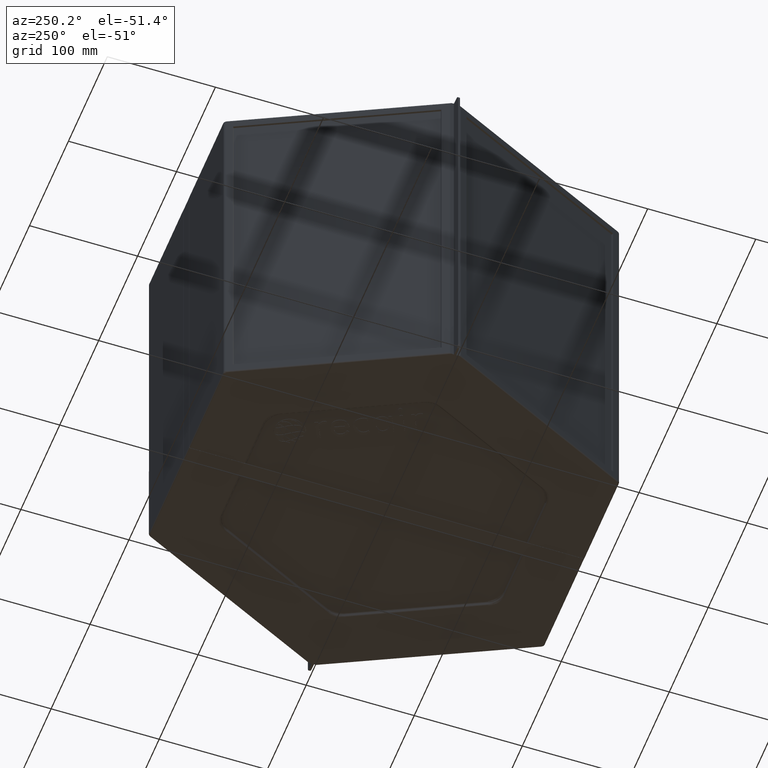
[diagram: clean part render]
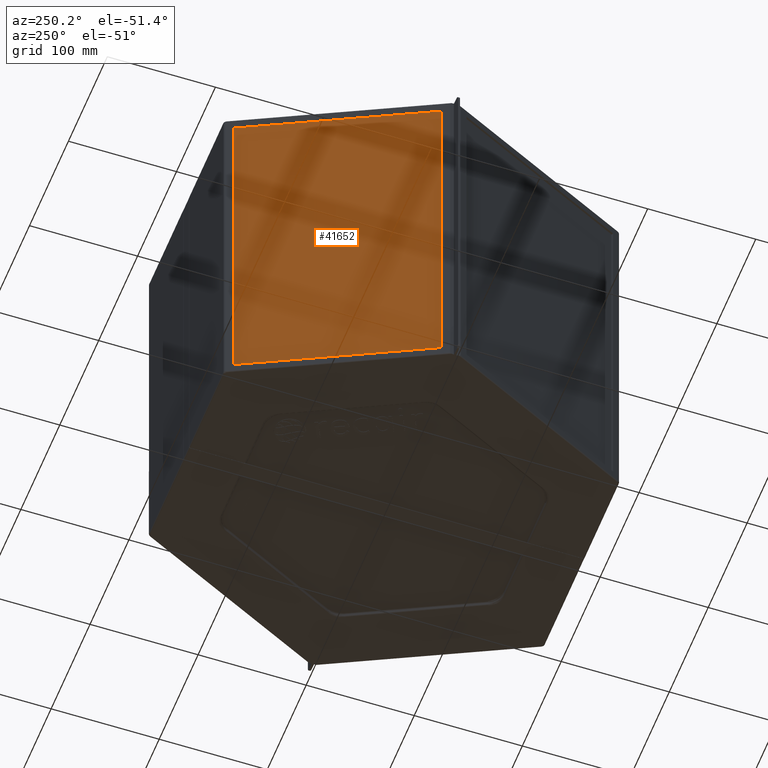
[diagram: same view with one face highlighted and labeled with its STEP entity id]
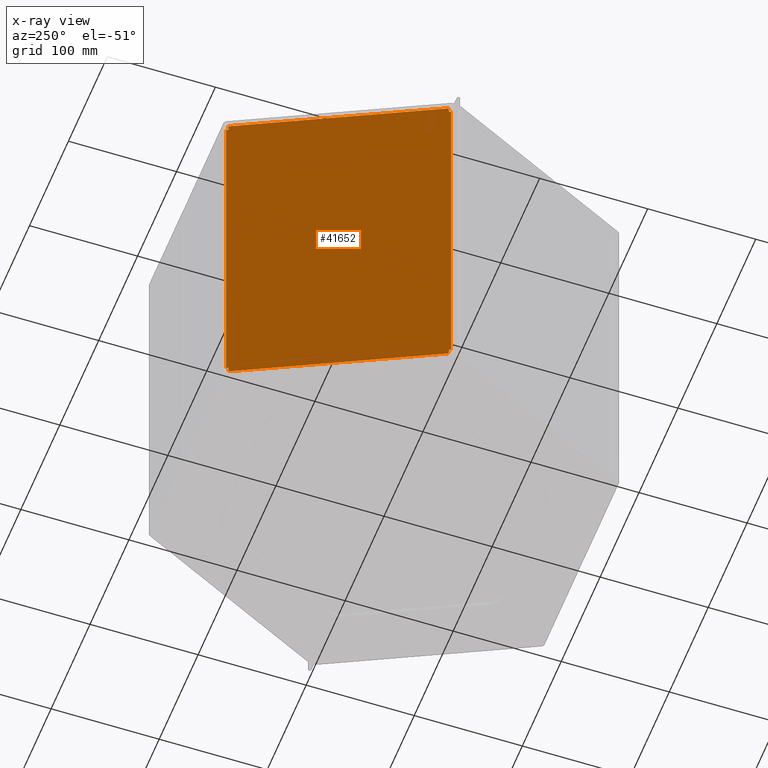
[diagram: x-ray of the same camera — body ghosted, the highlighted face saturated]
A machine part, auxiliary view. The second image highlights one B-rep face of the part: STEP entity #41652.
The next image is the same camera in x-ray: the body ghosted, the highlighted face saturated — about 0% of this face is hidden behind the body in this view.
In plain terms, the highlighted planar face has unit normal (-0.9007, 0.4344, 0).
Its self-contained STEP definition (entity closure, byte-faithful):
#1796=PLANE('',#44050);
#3133=FACE_OUTER_BOUND('',#5406,.T.);
#5406=EDGE_LOOP('',(#27264,#27265,#27266,#27267,#27268,#27269,#27270,#27271,
#27272,#27273,#27274,#27275,#27276,#27277,#27278,#27279,#27280,#27281,#27282,
#27283,#27284,#27285,#27286,#27287,#27288,#27289,#27290,#27291,#27292,#27293,
#27294,#27295));
#7824=LINE('',#57548,#11992);
#7830=LINE('',#57560,#11998);
#7831=LINE('',#57562,#11999);
#7832=LINE('',#57564,#12000);
#7833=LINE('',#57566,#12001);
#7834=LINE('',#57568,#12002);
#7835=LINE('',#57570,#12003);
#7836=LINE('',#57572,#12004);
#7837=LINE('',#57574,#12005);
#7838=LINE('',#57576,#12006);
#7839=LINE('',#57578,#12007);
#7840=LINE('',#57580,#12008);
#7841=LINE('',#57582,#12009);
#7842=LINE('',#57584,#12010);
#7843=LINE('',#57586,#12011);
#7844=LINE('',#57588,#12012);
#7845=LINE('',#57590,#12013);
#7846=LINE('',#57592,#12014);
#7847=LINE('',#57594,#12015);
#7848=LINE('',#57596,#12016);
#7849=LINE('',#57598,#12017);
#7850=LINE('',#57600,#12018);
#7851=LINE('',#57602,#12019);
#7852=LINE('',#57604,#12020);
#7853=LINE('',#57606,#12021);
#7854=LINE('',#57608,#12022);
#7855=LINE('',#57610,#12023);
#7856=LINE('',#57612,#12024);
#7857=LINE('',#57614,#12025);
#7858=LINE('',#57616,#12026);
#7859=LINE('',#57618,#12027);
#7860=LINE('',#57619,#12028);
#11992=VECTOR('',#47277,10.);
#11998=VECTOR('',#47285,10.);
#11999=VECTOR('',#47286,10.);
#12000=VECTOR('',#47287,10.);
#12001=VECTOR('',#47288,10.);
#12002=VECTOR('',#47289,10.);
#12003=VECTOR('',#47290,10.);
#12004=VECTOR('',#47291,10.);
#12005=VECTOR('',#47292,10.);
#12006=VECTOR('',#47293,10.);
#12007=VECTOR('',#47294,10.);
#12008=VECTOR('',#47295,10.);
#12009=VECTOR('',#47296,10.);
#12010=VECTOR('',#47297,10.);
#12011=VECTOR('',#47298,10.);
#12012=VECTOR('',#47299,10.);
#12013=VECTOR('',#47300,10.);
#12014=VECTOR('',#47301,10.);
#12015=VECTOR('',#47302,10.);
#12016=VECTOR('',#47303,10.);
#12017=VECTOR('',#47304,10.);
#12018=VECTOR('',#47305,10.);
#12019=VECTOR('',#47306,10.);
#12020=VECTOR('',#47307,10.);
#12021=VECTOR('',#47308,10.);
#12022=VECTOR('',#47309,10.);
#12023=VECTOR('',#47310,10.);
#12024=VECTOR('',#47311,10.);
#12025=VECTOR('',#47312,10.);
#12026=VECTOR('',#47313,10.);
#12027=VECTOR('',#47314,10.);
#12028=VECTOR('',#47315,10.);
#17094=VERTEX_POINT('',#57545);
#17095=VERTEX_POINT('',#57547);
#17100=VERTEX_POINT('',#57559);
#17101=VERTEX_POINT('',#57561);
#17102=VERTEX_POINT('',#57563);
#17103=VERTEX_POINT('',#57565);
#17104=VERTEX_POINT('',#57567);
#17105=VERTEX_POINT('',#57569);
#17106=VERTEX_POINT('',#57571);
#17107=VERTEX_POINT('',#57573);
#17108=VERTEX_POINT('',#57575);
#17109=VERTEX_POINT('',#57577);
#17110=VERTEX_POINT('',#57579);
#17111=VERTEX_POINT('',#57581);
#17112=VERTEX_POINT('',#57583);
#17113=VERTEX_POINT('',#57585);
#17114=VERTEX_POINT('',#57587);
#17115=VERTEX_POINT('',#57589);
#17116=VERTEX_POINT('',#57591);
#17117=VERTEX_POINT('',#57593);
#17118=VERTEX_POINT('',#57595);
#17119=VERTEX_POINT('',#57597);
#17120=VERTEX_POINT('',#57599);
#17121=VERTEX_POINT('',#57601);
#17122=VERTEX_POINT('',#57603);
#17123=VERTEX_POINT('',#57605);
#17124=VERTEX_POINT('',#57607);
#17125=VERTEX_POINT('',#57609);
#17126=VERTEX_POINT('',#57611);
#17127=VERTEX_POINT('',#57613);
#17128=VERTEX_POINT('',#57615);
#17129=VERTEX_POINT('',#57617);
#21108=EDGE_CURVE('',#17094,#17095,#7824,.T.);
#21114=EDGE_CURVE('',#17100,#17094,#7830,.T.);
#21115=EDGE_CURVE('',#17101,#17100,#7831,.T.);
#21116=EDGE_CURVE('',#17102,#17101,#7832,.T.);
#21117=EDGE_CURVE('',#17103,#17102,#7833,.T.);
#21118=EDGE_CURVE('',#17103,#17104,#7834,.T.);
#21119=EDGE_CURVE('',#17105,#17104,#7835,.T.);
#21120=EDGE_CURVE('',#17106,#17105,#7836,.T.);
#21121=EDGE_CURVE('',#17107,#17106,#7837,.T.);
#21122=EDGE_CURVE('',#17107,#17108,#7838,.T.);
#21123=EDGE_CURVE('',#17109,#17108,#7839,.T.);
#21124=EDGE_CURVE('',#17110,#17109,#7840,.T.);
#21125=EDGE_CURVE('',#17111,#17110,#7841,.T.);
#21126=EDGE_CURVE('',#17111,#17112,#7842,.T.);
#21127=EDGE_CURVE('',#17113,#17112,#7843,.T.);
#21128=EDGE_CURVE('',#17114,#17113,#7844,.T.);
#21129=EDGE_CURVE('',#17115,#17114,#7845,.T.);
#21130=EDGE_CURVE('',#17116,#17115,#7846,.T.);
#21131=EDGE_CURVE('',#17117,#17116,#7847,.T.);
#21132=EDGE_CURVE('',#17117,#17118,#7848,.T.);
#21133=EDGE_CURVE('',#17119,#17118,#7849,.T.);
#21134=EDGE_CURVE('',#17120,#17119,#7850,.T.);
#21135=EDGE_CURVE('',#17121,#17120,#7851,.T.);
#21136=EDGE_CURVE('',#17121,#17122,#7852,.T.);
#21137=EDGE_CURVE('',#17123,#17122,#7853,.T.);
#21138=EDGE_CURVE('',#17124,#17123,#7854,.T.);
#21139=EDGE_CURVE('',#17125,#17124,#7855,.T.);
#21140=EDGE_CURVE('',#17125,#17126,#7856,.T.);
#21141=EDGE_CURVE('',#17127,#17126,#7857,.T.);
#21142=EDGE_CURVE('',#17128,#17127,#7858,.T.);
#21143=EDGE_CURVE('',#17129,#17128,#7859,.T.);
#21144=EDGE_CURVE('',#17095,#17129,#7860,.T.);
#27264=ORIENTED_EDGE('',*,*,#21114,.F.);
#27265=ORIENTED_EDGE('',*,*,#21115,.F.);
#27266=ORIENTED_EDGE('',*,*,#21116,.F.);
#27267=ORIENTED_EDGE('',*,*,#21117,.F.);
#27268=ORIENTED_EDGE('',*,*,#21118,.T.);
#27269=ORIENTED_EDGE('',*,*,#21119,.F.);
#27270=ORIENTED_EDGE('',*,*,#21120,.F.);
#27271=ORIENTED_EDGE('',*,*,#21121,.F.);
#27272=ORIENTED_EDGE('',*,*,#21122,.T.);
#27273=ORIENTED_EDGE('',*,*,#21123,.F.);
#27274=ORIENTED_EDGE('',*,*,#21124,.F.);
#27275=ORIENTED_EDGE('',*,*,#21125,.F.);
#27276=ORIENTED_EDGE('',*,*,#21126,.T.);
#27277=ORIENTED_EDGE('',*,*,#21127,.F.);
#27278=ORIENTED_EDGE('',*,*,#21128,.F.);
#27279=ORIENTED_EDGE('',*,*,#21129,.F.);
#27280=ORIENTED_EDGE('',*,*,#21130,.F.);
#27281=ORIENTED_EDGE('',*,*,#21131,.F.);
#27282=ORIENTED_EDGE('',*,*,#21132,.T.);
#27283=ORIENTED_EDGE('',*,*,#21133,.F.);
#27284=ORIENTED_EDGE('',*,*,#21134,.F.);
#27285=ORIENTED_EDGE('',*,*,#21135,.F.);
#27286=ORIENTED_EDGE('',*,*,#21136,.T.);
#27287=ORIENTED_EDGE('',*,*,#21137,.F.);
#27288=ORIENTED_EDGE('',*,*,#21138,.F.);
#27289=ORIENTED_EDGE('',*,*,#21139,.F.);
#27290=ORIENTED_EDGE('',*,*,#21140,.T.);
#27291=ORIENTED_EDGE('',*,*,#21141,.F.);
#27292=ORIENTED_EDGE('',*,*,#21142,.F.);
#27293=ORIENTED_EDGE('',*,*,#21143,.F.);
#27294=ORIENTED_EDGE('',*,*,#21144,.F.);
#27295=ORIENTED_EDGE('',*,*,#21108,.F.);
#41652=ADVANCED_FACE('',(#3133),#1796,.T.);
#44050=AXIS2_PLACEMENT_3D('',#57558,#47283,#47284);
#47277=DIRECTION('',(0.,0.,-1.));
#47283=DIRECTION('center_axis',(-0.900698239322599,0.434445257404394,0.));
#47284=DIRECTION('ref_axis',(0.,0.,1.));
#47285=DIRECTION('',(-0.434445257404394,-0.900698239322599,-1.10303721578408E-16));
#47286=DIRECTION('',(-0.0434421140447129,-0.0900648239695313,-0.994987995008313));
#47287=DIRECTION('',(-0.434445257404394,-0.900698239322599,-1.10303721578408E-16));
#47288=DIRECTION('',(-0.0436276806152542,-0.0904495432880534,-0.99494497616859));
#47289=DIRECTION('',(0.434445257404394,0.900698239322599,0.));
#47290=DIRECTION('',(-0.0435906548556055,-0.0903727809435305,0.994953574431386));
#47291=DIRECTION('',(-0.434445257404394,-0.900698239322599,-1.10303721578408E-16));
#47292=DIRECTION('',(-0.0435906548556054,-0.0903727809435304,-0.994953574431386));
#47293=DIRECTION('',(0.434445257404394,0.900698239322599,0.));
#47294=DIRECTION('',(-0.0392993810977862,-0.0814760496471377,0.995900201817044));
#47295=DIRECTION('',(-0.434445257404394,-0.900698239322599,-1.10303721578408E-16));
#47296=DIRECTION('',(-0.0392993810977861,-0.0814760496471375,-0.995900201817044));
#47297=DIRECTION('',(0.434445257404394,0.900698239322599,0.));
#47298=DIRECTION('',(-5.9069949363416E-17,-1.22464679914735E-16,1.));
#47299=DIRECTION('',(-0.434445257404394,-0.900698239322599,-1.10303721579977E-16));
#47300=DIRECTION('',(0.,0.,1.));
#47301=DIRECTION('',(0.434445257404394,0.900698239322599,-1.5688460663192E-27));
#47302=DIRECTION('',(0.,0.,1.));
#47303=DIRECTION('',(-0.434445257404394,-0.900698239322599,0.));
#47304=DIRECTION('',(0.0392993810977862,0.0814760496471376,-0.995900201817044));
#47305=DIRECTION('',(0.434445257404394,0.900698239322599,0.));
#47306=DIRECTION('',(0.0392993810977862,0.0814760496471376,0.995900201817044));
#47307=DIRECTION('',(-0.434445257404394,-0.900698239322599,0.));
#47308=DIRECTION('',(0.0435906548556055,0.0903727809435304,-0.994953574431386));
#47309=DIRECTION('',(0.434445257404394,0.900698239322599,0.));
#47310=DIRECTION('',(0.0435906548556055,0.0903727809435304,0.994953574431386));
#47311=DIRECTION('',(-0.434445257404394,-0.900698239322599,0.));
#47312=DIRECTION('',(0.0436276806152543,0.0904495432880535,-0.99494497616859));
#47313=DIRECTION('',(0.434445257404394,0.900698239322599,0.));
#47314=DIRECTION('',(0.0434421140447129,0.0900648239695313,-0.994987995008313));
#47315=DIRECTION('',(0.434445257404394,0.900698239322599,0.));
#57545=CARTESIAN_POINT('',(-180.402886856966,2.81525148002437,341.));
#57547=CARTESIAN_POINT('',(-180.402886856966,2.81525148002437,8.99999999999999));
#57548=CARTESIAN_POINT('',(-180.402886856966,2.81525148002437,175.));
#57558=CARTESIAN_POINT('Origin',(-94.8426410766108,180.2,175.));
#57559=CARTESIAN_POINT('',(-179.652886856966,4.3701624106393,341.));
#57560=CARTESIAN_POINT('',(-136.996188510657,92.80665110747,341.));
#57561=CARTESIAN_POINT('',(-179.443314331005,4.80465122580352,345.8));
#57562=CARTESIAN_POINT('',(-182.751662204726,-2.05426380236513,270.026375947633));
#57563=CARTESIAN_POINT('',(-179.204386445598,5.29999999999998,345.8));
#57564=CARTESIAN_POINT('',(-132.128344539999,102.898736172143,345.8));
#57565=CARTESIAN_POINT('',(-179.195616577583,5.3181818181818,346.));
#57566=CARTESIAN_POINT('',(-182.438030012387,-1.40403697028434,272.055593326872));
#57567=CARTESIAN_POINT('',(-173.955612920203,16.1818337692801,346.));
#57568=CARTESIAN_POINT('',(-180.402886856966,2.81525148002441,346.));
#57569=CARTESIAN_POINT('',(-173.946850570687,16.2,345.8));
#57570=CARTESIAN_POINT('',(-169.848002100053,24.6977923865646,252.244077281728));
#57571=CARTESIAN_POINT('',(-173.657444926197,16.7999999999999,345.8));
#57572=CARTESIAN_POINT('',(-132.128344539999,102.898736172143,345.8));
#57573=CARTESIAN_POINT('',(-173.648682576681,16.8181662307198,346.));
#57574=CARTESIAN_POINT('',(-176.961182834896,9.9506424185012,270.392418899567));
#57575=CARTESIAN_POINT('',(-99.2286213031588,171.106921872372,346.));
#57576=CARTESIAN_POINT('',(-180.402886856966,2.81525148002441,346.));
#57577=CARTESIAN_POINT('',(-99.2207290703777,171.123284164397,345.8));
#57578=CARTESIAN_POINT('',(-95.8604090495979,178.089948605297,260.644883217438));
#57579=CARTESIAN_POINT('',(-98.960061915935,171.66370310799,345.8));
#57580=CARTESIAN_POINT('',(-132.128344539999,102.898736172143,345.8));
#57581=CARTESIAN_POINT('',(-98.9521696831539,171.680065400015,346.));
#57582=CARTESIAN_POINT('',(-102.28562346276,164.769100441869,261.525710606053));
#57583=CARTESIAN_POINT('',(-95.7329357806328,178.35422804433,346.));
#57584=CARTESIAN_POINT('',(-180.402886856966,2.81525148002441,346.));
#57585=CARTESIAN_POINT('',(-95.7329357806328,178.35422804433,341.));
#57586=CARTESIAN_POINT('',(-95.7329357806328,178.35422804433,258.));
#57587=CARTESIAN_POINT('',(-94.8426410766108,180.2,341.));
#57588=CARTESIAN_POINT('',(-94.5058037593812,180.898336035199,341.));
#57589=CARTESIAN_POINT('',(-94.8426410766108,180.2,8.99999999999999));
#57590=CARTESIAN_POINT('',(-94.8426410766108,180.2,175.));
#57591=CARTESIAN_POINT('',(-95.7329357806328,178.35422804433,9.));
#57592=CARTESIAN_POINT('',(-94.5058037593812,180.898336035199,9.));
#57593=CARTESIAN_POINT('',(-95.7329357806328,178.35422804433,3.99999999999999));
#57594=CARTESIAN_POINT('',(-95.7329357806328,178.35422804433,92.));
#57595=CARTESIAN_POINT('',(-98.9521696831538,171.680065400015,3.99999999999999));
#57596=CARTESIAN_POINT('',(-180.402886856966,2.81525148002441,3.99999999999999));
#57597=CARTESIAN_POINT('',(-98.960061915935,171.66370310799,4.2));
#57598=CARTESIAN_POINT('',(-102.28562346276,164.769100441869,88.4742893939474));
#57599=CARTESIAN_POINT('',(-99.2207290703776,171.123284164397,4.2));
#57600=CARTESIAN_POINT('',(-137.536766974867,91.6859159569956,4.2));
#57601=CARTESIAN_POINT('',(-99.2286213031588,171.106921872372,3.99999999999999));
#57602=CARTESIAN_POINT('',(-95.8604090495979,178.089948605297,89.3551167825619));
#57603=CARTESIAN_POINT('',(-173.648682576681,16.8181662307199,3.99999999999999));
#57604=CARTESIAN_POINT('',(-180.402886856966,2.81525148002441,3.99999999999999));
#57605=CARTESIAN_POINT('',(-173.657444926197,16.8,4.2));
#57606=CARTESIAN_POINT('',(-176.968039969471,9.93642610716268,79.764094705899));
#57607=CARTESIAN_POINT('',(-173.946850570687,16.2,4.2));
#57608=CARTESIAN_POINT('',(-137.536766974867,91.6859159569956,4.2));
#57609=CARTESIAN_POINT('',(-173.955612920203,16.1818337692801,3.99999999999999));
#57610=CARTESIAN_POINT('',(-169.841144965478,24.7120086979031,97.9124363237385));
#57611=CARTESIAN_POINT('',(-179.195616577583,5.31818181818182,3.99999999999999));
#57612=CARTESIAN_POINT('',(-180.402886856966,2.81525148002441,3.99999999999999));
#57613=CARTESIAN_POINT('',(-179.204386445598,5.3,4.2));
#57614=CARTESIAN_POINT('',(-182.438030012387,-1.40403697028432,77.9444066731278));
#57615=CARTESIAN_POINT('',(-179.443314331005,4.8046512258035,4.2));
#57616=CARTESIAN_POINT('',(-137.536766974867,91.6859159569956,4.2));
#57617=CARTESIAN_POINT('',(-179.652886856966,4.37016241063928,9.));
#57618=CARTESIAN_POINT('',(-182.751662204726,-2.05426380236513,79.9736240523668));
#57619=CARTESIAN_POINT('',(-136.996188510657,92.80665110747,9.));